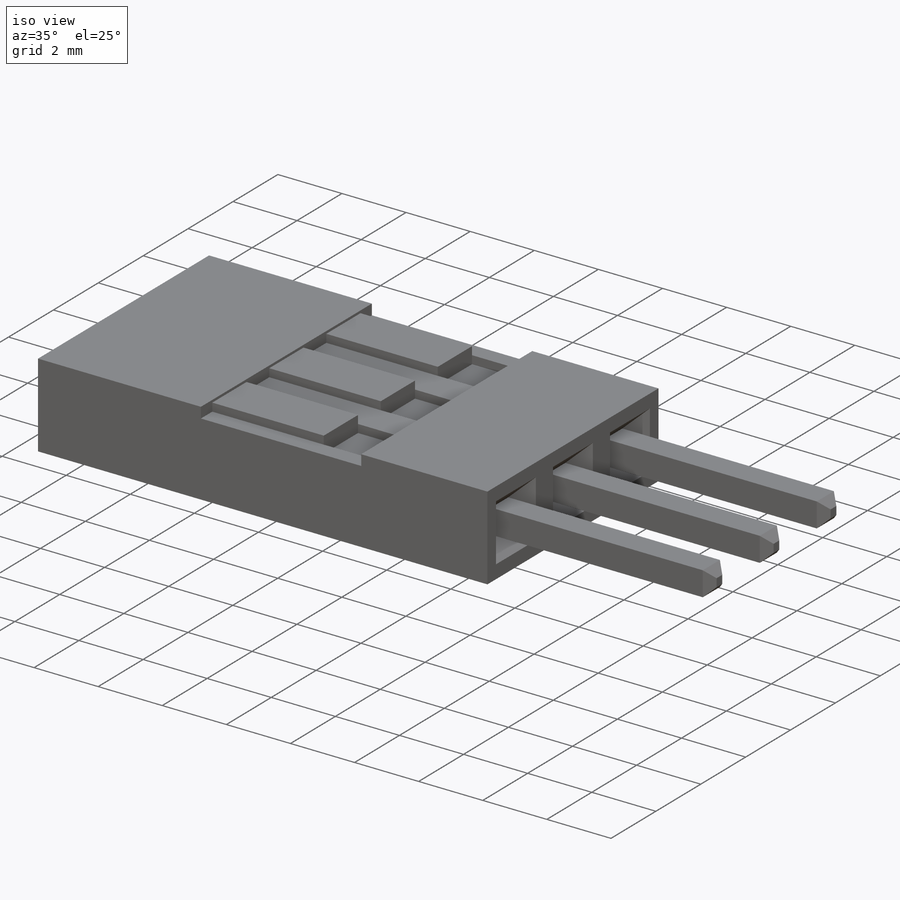
[diagram: iso view]
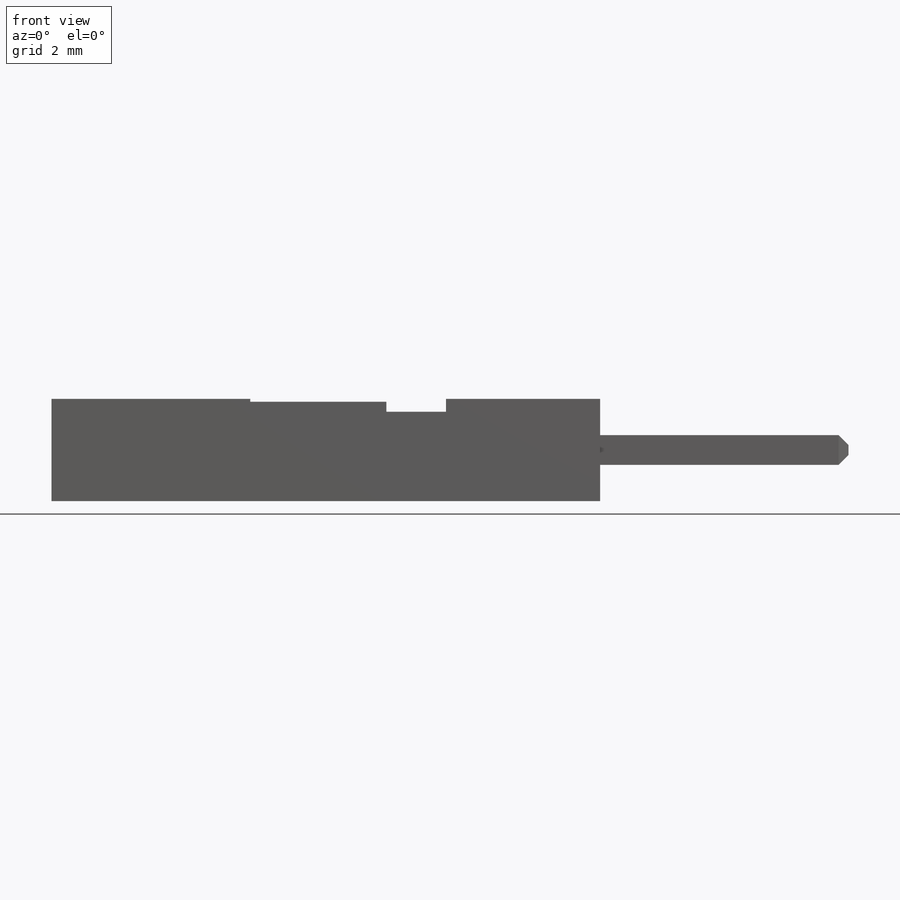
[diagram: front view]
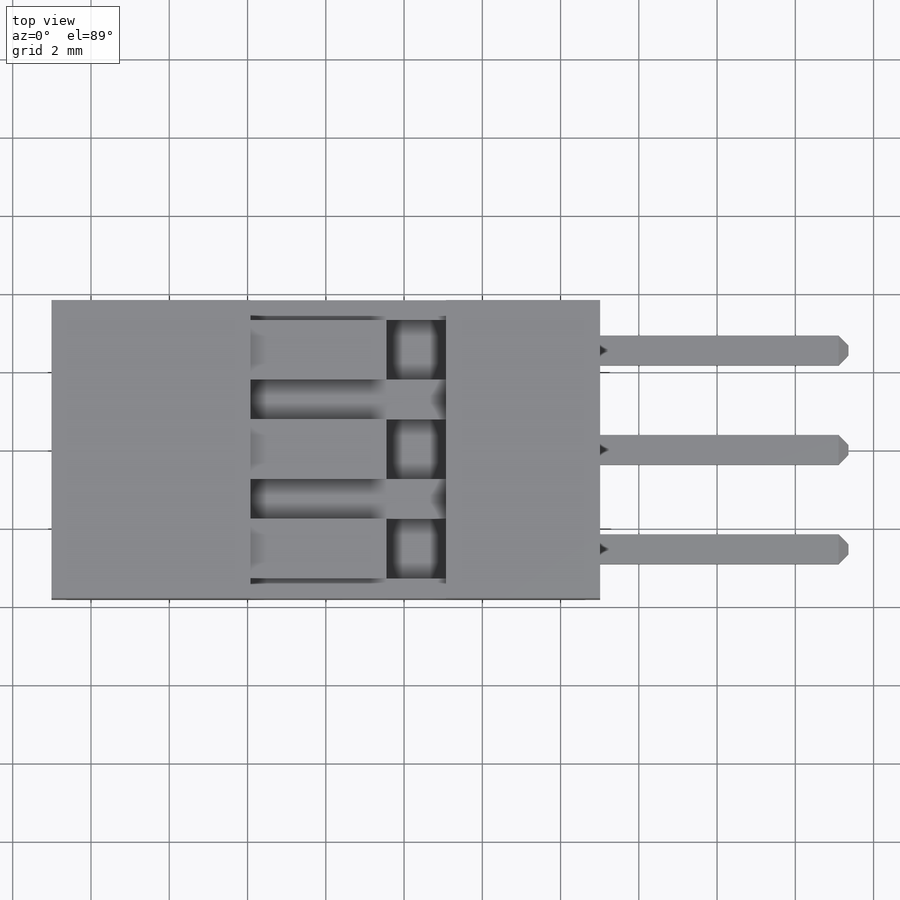
[diagram: top view]
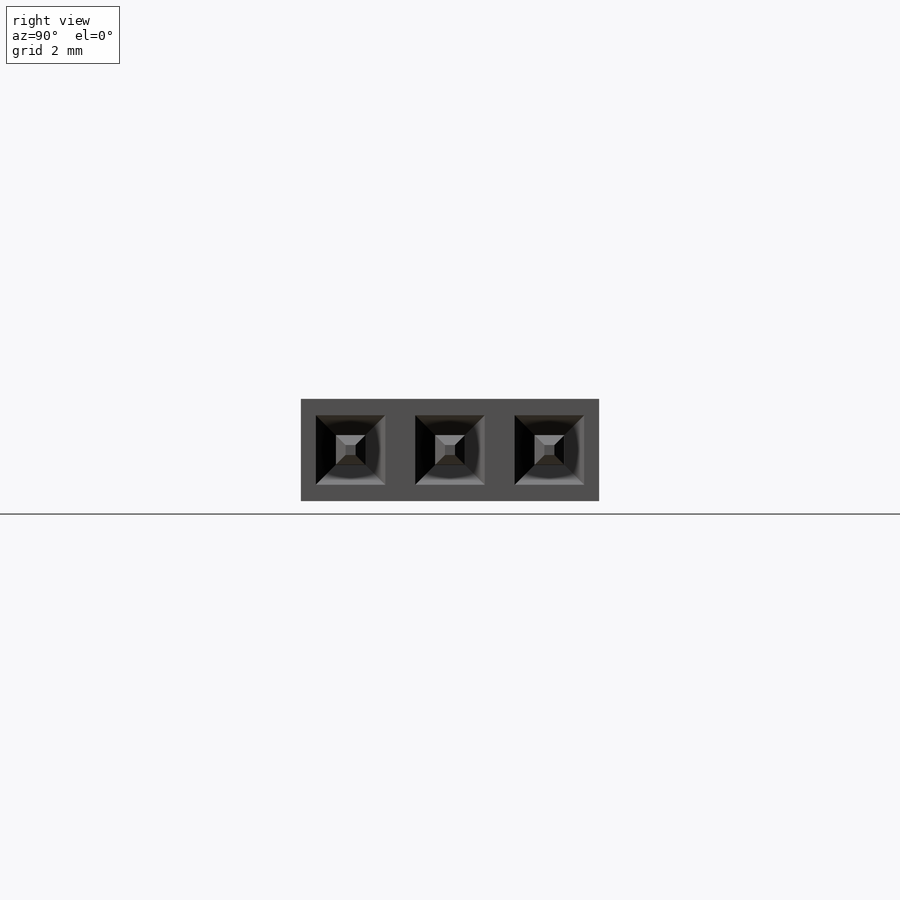
[diagram: right view]
SOLIDWORKS PART (.sldprt)
format: sldprt  version: not decoded by parser v0  size: 416,256 bytes
history: native  units: mm
features: sketch x11, cut_extrude x5, extrude x3, chamfer x2, material x1, plane x1 (+13 scaffold rows collapsed)
feature tree (36):
  scaffold x13  (default folders/planes/origin — collapsed)
  material  "Material <not specified>"
  sketch  "Sketch1"  dims[c1.D1=~48.032142mm c1.D2=~117.351256mm c2.D1=7.62mm c2.D2=14.0208mm]
  extrude  "Boss-Extrude1"  Depth=2.6162mm
  sketch  "Sketch2"  dims[D1=0.762mm D3=2.54mm D2=3.0]
  cut_extrude  "Cut-Extrude1"  Depth=6.35mm
  chamfer  "Chamfer1"  Distance=0.508mm Angle=45deg
  sketch  "Sketch3"  dims[D1=0.0mm D2=0.0mm D3=0.0mm]
  cut_extrude  "Cut-Extrude2"  Depth=0.254mm
  sketch  "Sketch4"  dims[D1=~2.999746mm]
  cut_extrude  "Cut-Extrude3"  Depth=5.08mm
  sketch  "Sketch5"  dims[c1.D1=~0.463995mm c1.D2=~4.48666mm c2.D1=3.937mm c2.D2=5.08mm c2.D3=2.286mm]
  cut_extrude  "Cut-Extrude4"  [1 undecoded]
  sketch  "Sketch6"  dims[D1=1.524mm D2=3.0]
  cut_extrude  "Cut-Extrude5"  Depth=0.254mm
  sketch  "Sketch7"
  extrude  "Boss-Extrude2"  [1 undecoded]
  sketch  "Sketch8"
  extrude  "Boss-Extrude3"  Depth=12.7mm
  chamfer  "Chamfer2"  Distance=0.254mm Angle=45deg
  sketch  "Sketch9"
  sketch  "Sketch10"  dims[D1=2.54mm]
  plane  "Plane1"
  sketch  "EwCable_Point"  dims[Diameter=2.0mm Width=0.0 Depth=0.0 StubLength=2.0mm]
decode coverage: 16 of 21 modeling features carry decoded parameters
note: ~ marks probable driven/reference dimensions
note: 2 parameter values undecoded
note: suppression state not decoded; provenance and decode notes live in map.json
